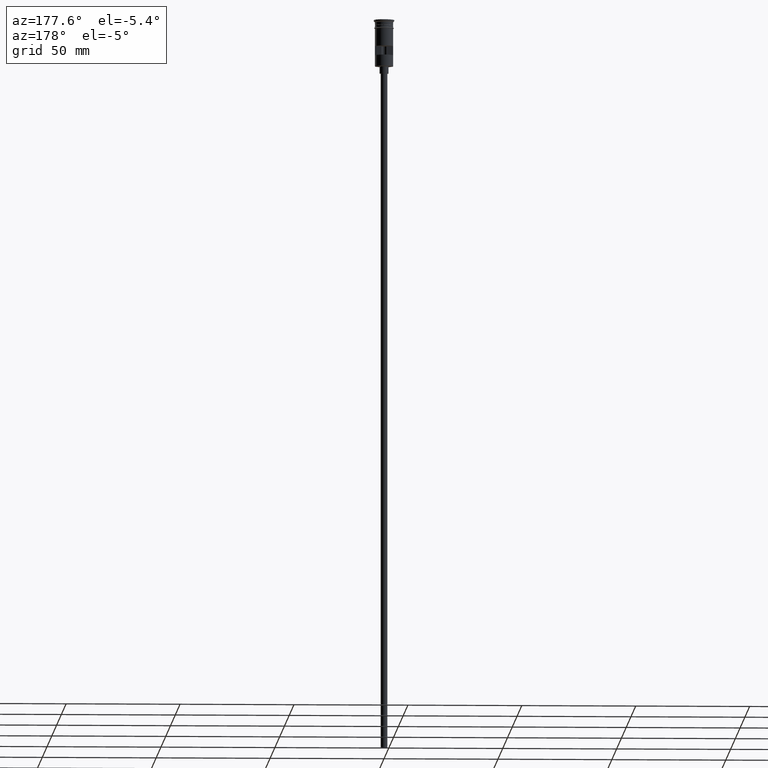
[diagram: clean part render]
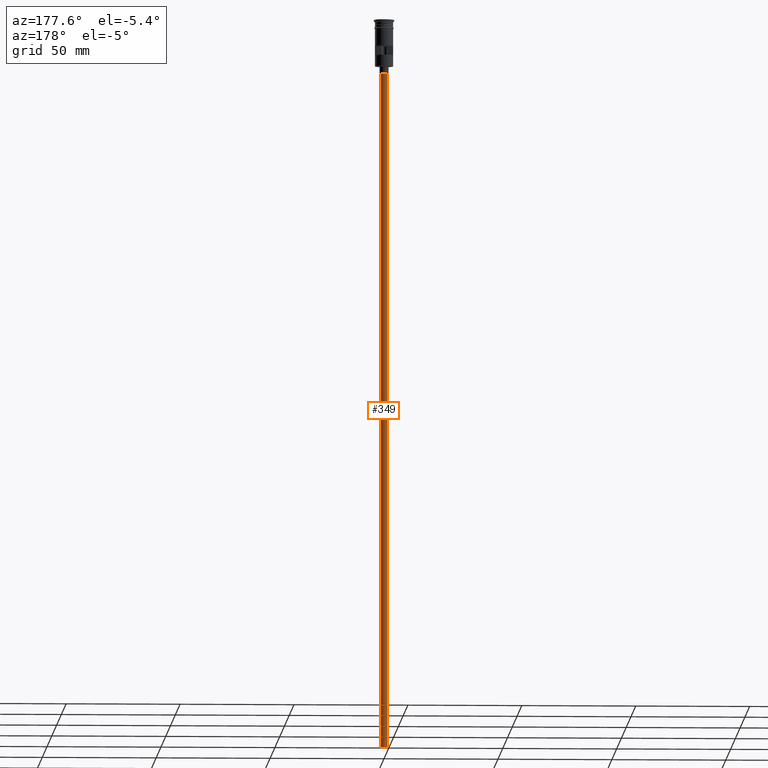
[diagram: same view with one face highlighted and labeled with its STEP entity id]
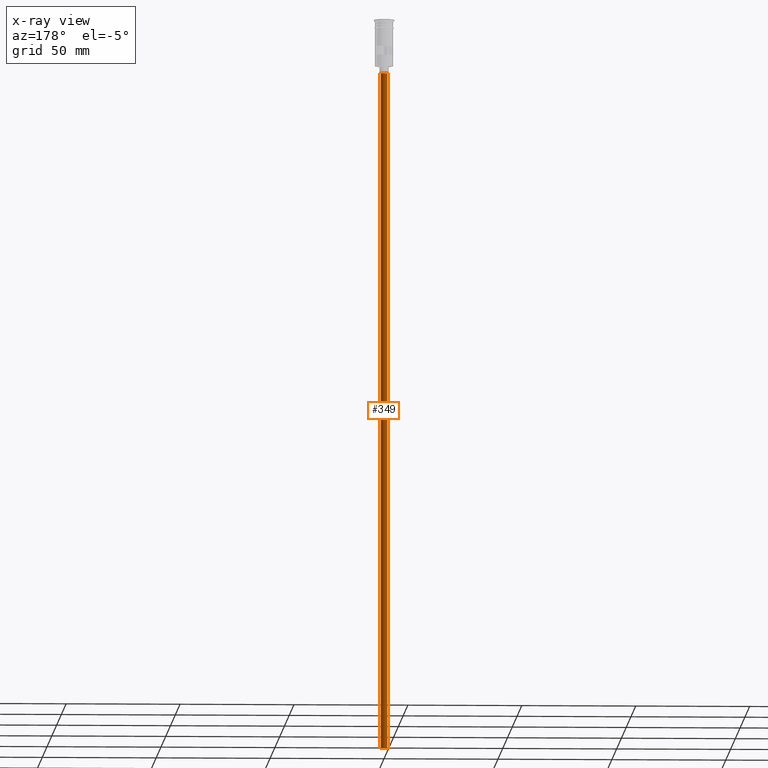
[diagram: x-ray of the same camera — body ghosted, the highlighted face saturated]
A machine part, auxiliary view. The second image highlights one B-rep face of the part: STEP entity #349.
The next image is the same camera in x-ray: the body ghosted, the highlighted face saturated — about 0% of this face is hidden behind the body in this view.
In plain terms, the highlighted cylindrical surface (edge-blend (fillet) strip) has radius 1.5 mm, axis along (-0, -0, 1).
Its self-contained STEP definition (entity closure, byte-faithful):
#70 = DIRECTION ( 'NONE',  ( -1.000000000000000000, 0.000000000000000000, 0.000000000000000000 ) ) ;
#100 = DIRECTION ( 'NONE',  ( 0.000000000000000000, 0.000000000000000000, -1.000000000000000000 ) ) ;
#124 = DIRECTION ( 'NONE',  ( -0.000000000000000000, -0.000000000000000000, 1.000000000000000000 ) ) ;
#156 = CIRCLE ( 'NONE', #1033, 1.500000000000000222 ) ;
#248 = VERTEX_POINT ( 'NONE', #1030 ) ;
#349 = ADVANCED_FACE ( 'NONE', ( #592 ), #1105, .T. ) ;
#397 = EDGE_CURVE ( 'NONE', #1603, #1454, #156, .T. ) ;
#434 = AXIS2_PLACEMENT_3D ( 'NONE', #1467, #124, #564 ) ;
#441 = CIRCLE ( 'NONE', #641, 1.500000000000000222 ) ;
#442 = LINE ( 'NONE', #591, #871 ) ;
#445 = DIRECTION ( 'NONE',  ( -0.000000000000000000, -0.000000000000000000, 1.000000000000000000 ) ) ;
#458 = EDGE_CURVE ( 'NONE', #1454, #478, #1098, .T. ) ;
#478 = VERTEX_POINT ( 'NONE', #566 ) ;
#507 = ORIENTED_EDGE ( 'NONE', *, *, #1501, .T. ) ;
#564 = DIRECTION ( 'NONE',  ( 1.000000000000000000, 0.000000000000000000, 0.000000000000000000 ) ) ;
#566 = CARTESIAN_POINT ( 'NONE',  ( 1.500000000000000222, 0.000000000000000000, -23.49999999999999645 ) ) ;
#583 = DIRECTION ( 'NONE',  ( -1.000000000000000000, 0.000000000000000000, 0.000000000000000000 ) ) ;
#591 = CARTESIAN_POINT ( 'NONE',  ( -1.500000000000000222, 1.836970198721030181E-16, -320.5000000000000000 ) ) ;
#592 = FACE_OUTER_BOUND ( 'NONE', #953, .T. ) ;
#641 = AXIS2_PLACEMENT_3D ( 'NONE', #1373, #100, #583 ) ;
#675 = EDGE_CURVE ( 'NONE', #1603, #248, #442, .T. ) ;
#784 = DIRECTION ( 'NONE',  ( 0.000000000000000000, 0.000000000000000000, -1.000000000000000000 ) ) ;
#841 = ORIENTED_EDGE ( 'NONE', *, *, #458, .F. ) ;
#871 = VECTOR ( 'NONE', #1437, 1000.000000000000000 ) ;
#953 = EDGE_LOOP ( 'NONE', ( #1376, #1324, #507, #841 ) ) ;
#1003 = VECTOR ( 'NONE', #445, 1000.000000000000000 ) ;
#1007 = CARTESIAN_POINT ( 'NONE',  ( 1.500000000000000222, 0.000000000000000000, -320.5000000000000000 ) ) ;
#1030 = CARTESIAN_POINT ( 'NONE',  ( -1.500000000000000222, 1.836970198721030181E-16, -23.49999999999999645 ) ) ;
#1033 = AXIS2_PLACEMENT_3D ( 'NONE', #1387, #784, #70 ) ;
#1075 = CARTESIAN_POINT ( 'NONE',  ( 1.500000000000000222, 0.000000000000000000, -320.5000000000000000 ) ) ;
#1098 = LINE ( 'NONE', #1075, #1003 ) ;
#1105 = CYLINDRICAL_SURFACE ( 'NONE', #434, 1.500000000000000222 ) ;
#1324 = ORIENTED_EDGE ( 'NONE', *, *, #675, .T. ) ;
#1373 = CARTESIAN_POINT ( 'NONE',  ( 0.000000000000000000, 0.000000000000000000, -23.49999999999999645 ) ) ;
#1376 = ORIENTED_EDGE ( 'NONE', *, *, #397, .F. ) ;
#1387 = CARTESIAN_POINT ( 'NONE',  ( 0.000000000000000000, 0.000000000000000000, -320.5000000000000000 ) ) ;
#1437 = DIRECTION ( 'NONE',  ( -0.000000000000000000, -0.000000000000000000, 1.000000000000000000 ) ) ;
#1454 = VERTEX_POINT ( 'NONE', #1007 ) ;
#1467 = CARTESIAN_POINT ( 'NONE',  ( 0.000000000000000000, 0.000000000000000000, -320.5000000000000000 ) ) ;
#1482 = CARTESIAN_POINT ( 'NONE',  ( -1.500000000000000222, 1.836970198721030181E-16, -320.5000000000000000 ) ) ;
#1501 = EDGE_CURVE ( 'NONE', #248, #478, #441, .T. ) ;
#1603 = VERTEX_POINT ( 'NONE', #1482 ) ;